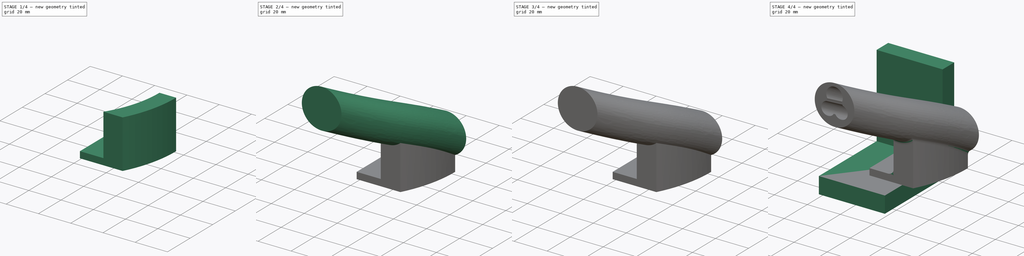
[diagram: build sequence overview — one tinted view per stage of 4, left to right]
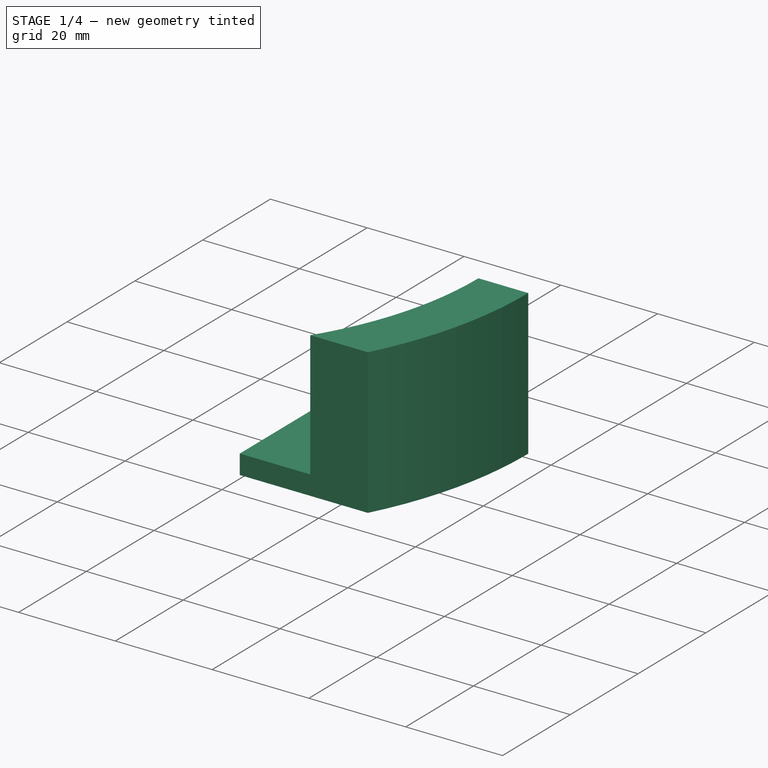
[diagram: stage 1 of 4 — iso view after this stage's code; geometry added in this stage tinted green]
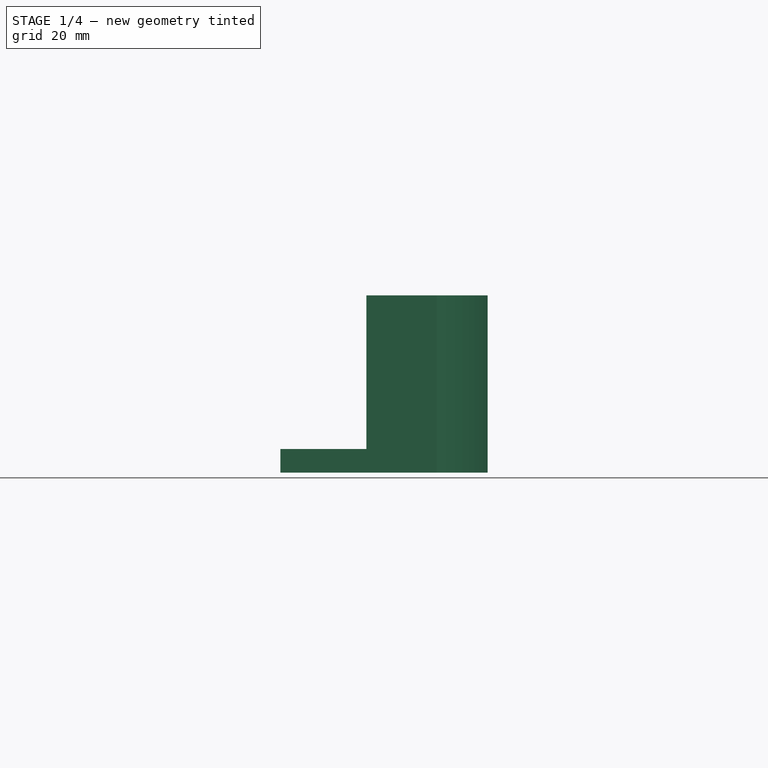
[diagram: stage 1 of 4 — front view after this stage's code; geometry added in this stage tinted green]
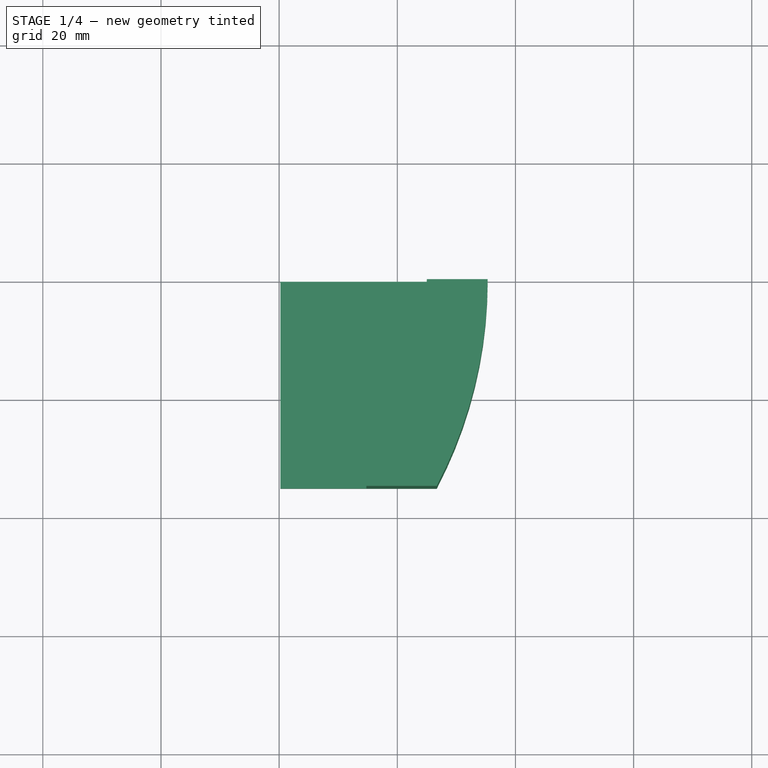
[diagram: stage 1 of 4 — top view after this stage's code; geometry added in this stage tinted green]
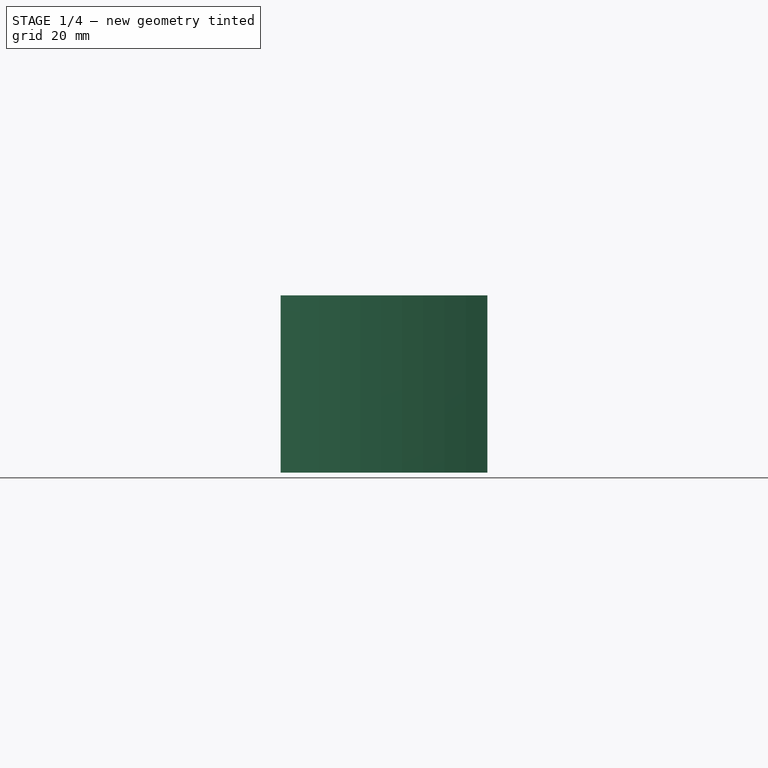
[diagram: stage 1 of 4 — right view after this stage's code; geometry added in this stage tinted green]
FCSTD DOCUMENT  (FreeCAD 1.0R39285 (Git))
Label: threePipeHolder
License: All rights reserved
LicenseURL: http://en.wikipedia.org/wiki/All_rights_reserved
objects: Sketcher::SketchObject×28, Part::Part2DObjectPython×5, PartDesign::AdditivePipe×5, PartDesign::Body×5, Part::Extrusion×3, Part::MultiFuse×3, Part::Cut×1, Part::Fillet×1
note: 89 computed .brp shape members not serialized (recipe doc carries the construction recipe); baked Part::Feature solids carry a one-line shape summary decoded from their .brp

FEATURE [Sketcher::SketchObject] Sketch029
  ArcFitTolerance = 1e-06
  AttachmentOffset = pos=(0,0,20) rot=(0,0,1;0rad)
  AttachmentSupport = -> [XY_Plane004]
  FullyConstrained = true
  MakeInternals = false
  MapMode = 5
  Placement = pos=(0,0,20) rot=(0,0,1;0rad)
  sketch-geometry (1):
    g0: LineSegment StartX=50 StartY=0 StartZ=0 EndX=50 EndY=-10 EndZ=0
  constraints (4):
    c: PointOnObject(g0,g-1)
    c: Vertical(g0)
    c: DistanceX(g0) = 50
    c: DistanceY(g0,g0) = 10
FEATURE [Sketcher::SketchObject] Sketch030
  ArcFitTolerance = 1e-06
  AttachmentOffset = pos=(0,0,50) rot=(0,0,1;0rad)
  AttachmentSupport = -> [XY_Plane004]
  FullyConstrained = true
  MakeInternals = false
  MapMode = 5
  Placement = pos=(0,0,50) rot=(0,0,1;0rad)
  sketch-geometry (1):
    g0: LineSegment StartX=20 StartY=-65 StartZ=0 EndX=20 EndY=-55 EndZ=0
  constraints (4):
    c: Vertical(g0)
    c: DistanceY(g0,g0) = 10
    c: DistanceY(g0) = -65
    c: DistanceX(g0) = 20
FEATURE [Sketcher::SketchObject] Sketch031
  ArcFitTolerance = 1e-06
  AttachmentOffset = pos=(0,0,35) rot=(0,0,1;0rad)
  AttachmentSupport = -> [XY_Plane004]
  FullyConstrained = true
  MakeInternals = false
  MapMode = 5
  Placement = pos=(0,0,35) rot=(0,0,1;0rad)
  sketch-geometry (1):
    g0: LineSegment StartX=40 StartY=-35.6 StartZ=0 EndX=43.2332 EndY=-30 EndZ=0
  constraints (4):
    c: Angle(g0) = 1.0472
    c: DistanceY(g0) = -35.6
    c: DistanceY(g0) = -30
    c: DistanceX(g0) = 40
FEATURE [PartDesign::Body] Body004  label="outer"
  AllowCompound = false
  Group = -> [Sketch027,Sketch028,Sketch029,Sketch030,Sketch031,BezCurve004,AdditivePipe004]
  Origin = -> Origin004
  Tip = -> AdditivePipe004
FEATURE [Sketcher::SketchObject] Sketch032
  ArcFitTolerance = 1e-06
  FullyConstrained = true
  MakeInternals = false
  sketch-geometry (4):
    g0: ArcOfCircle CenterX=-20 CenterY=0 CenterZ=0 NormalX=0 NormalY=0 NormalZ=1 AngleXU=0 Radius=75.3 StartAngle=5.79977 EndAngle=6.28319
    g1: LineSegment StartX=20.2 StartY=0 StartZ=0 EndX=55.3 EndY=-1.84e-14 EndZ=0
    g2: LineSegment StartX=20.2 StartY=0 StartZ=0 EndX=20.2 EndY=-35 EndZ=0
    g3: LineSegment StartX=20.2 StartY=-35 StartZ=0 EndX=46.6715 EndY=-35 EndZ=0
  constraints (13):
    c: PointOnObject(g0,g-1)
    c: PointOnObject(g0,g-1)
    c: DistanceX(g0) = -20
    c: DistanceY(g0) = -35
    c: Radius(g0) = 75.3
    c: PointOnObject(g1,g-1)
    c: Coincident(g1,g0)
    c: DistanceX(g1) = 20.2
    c: Coincident(g2,g1)
    c: Vertical(g2)
    c: Coincident(g3,g2)
    c: Coincident(g3,g0)
    c: Horizontal(g3)
FEATURE [Sketcher::SketchObject] Sketch033
  ArcFitTolerance = 1e-06
  FullyConstrained = true
  MakeInternals = false
  sketch-geometry (4):
    g0: ArcOfCircle CenterX=-20 CenterY=0 CenterZ=0 NormalX=0 NormalY=0 NormalZ=1 AngleXU=0 Radius=75.3 StartAngle=5.79977 EndAngle=6.28319
    g1: ArcOfCircle CenterX=-20 CenterY=0 CenterZ=0 NormalX=0 NormalY=0 NormalZ=1 AngleXU=0 Radius=65 StartAngle=5.71458 EndAngle=6.28319
    g2: LineSegment StartX=34.7723 StartY=-35 StartZ=0 EndX=46.6715 EndY=-35 EndZ=0
    g3: LineSegment StartX=45 StartY=-1.59e-14 StartZ=0 EndX=55.3 EndY=-1.84e-14 EndZ=0
  constraints (13):
    c: PointOnObject(g0,g-1)
    c: PointOnObject(g0,g-1)
    c: DistanceX(g0) = -20
    c: DistanceY(g0) = -35
    c: Radius(g0) = 75.3
    c: Coincident(g1,g0)
    c: PointOnObject(g1,g-1)
    c: Horizontal(g1,g0)
    c: Radius(g1) = 65
    c: Coincident(g2,g1)
    c: Coincident(g2,g0)
    c: Coincident(g3,g1)
    c: Coincident(g3,g0)
FEATURE [Part::Extrusion] Extrude001
  Base = -> Sketch032
  Dir = (0,0,1)
  DirMode = 2
  FaceMakerClass = Part::FaceMakerBullseye
  FaceMakerMode = 3
  LengthFwd = 4
  LengthRev = 0
  Solid = true
  Symmetric = false
FEATURE [Part::Extrusion] Extrude002
  Base = -> Sketch033
  Dir = (0,0,1)
  DirMode = 2
  FaceMakerClass = Part::FaceMakerBullseye
  FaceMakerMode = 3
  LengthFwd = 30
  LengthRev = 0
  Solid = true
  Symmetric = false
FEATURE [Part::MultiFuse] Fusion001
  Shapes = -> [Extrude001,Extrude002]
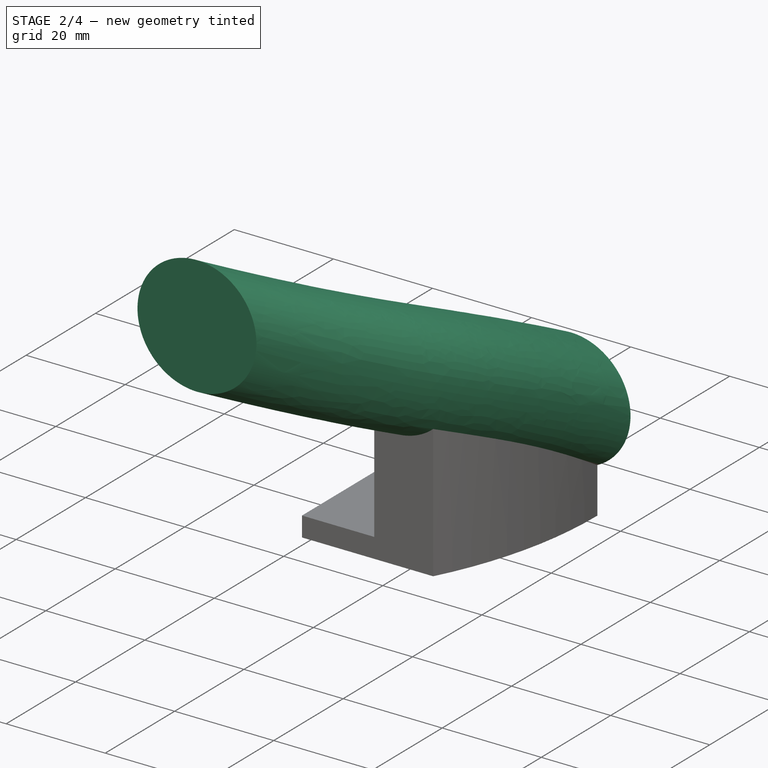
[diagram: stage 2 of 4 — iso view after this stage's code; geometry added in this stage tinted green]
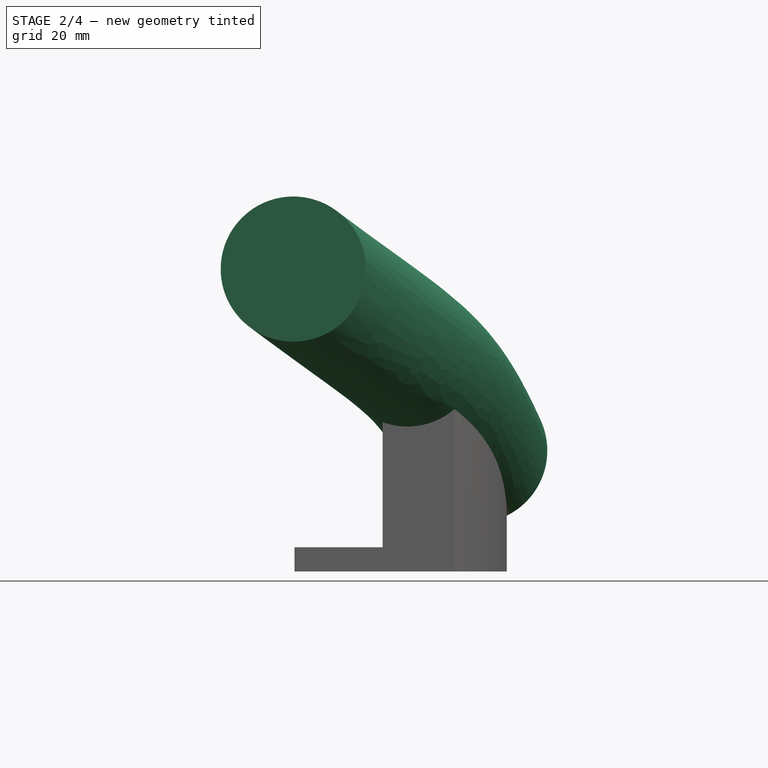
[diagram: stage 2 of 4 — front view after this stage's code; geometry added in this stage tinted green]
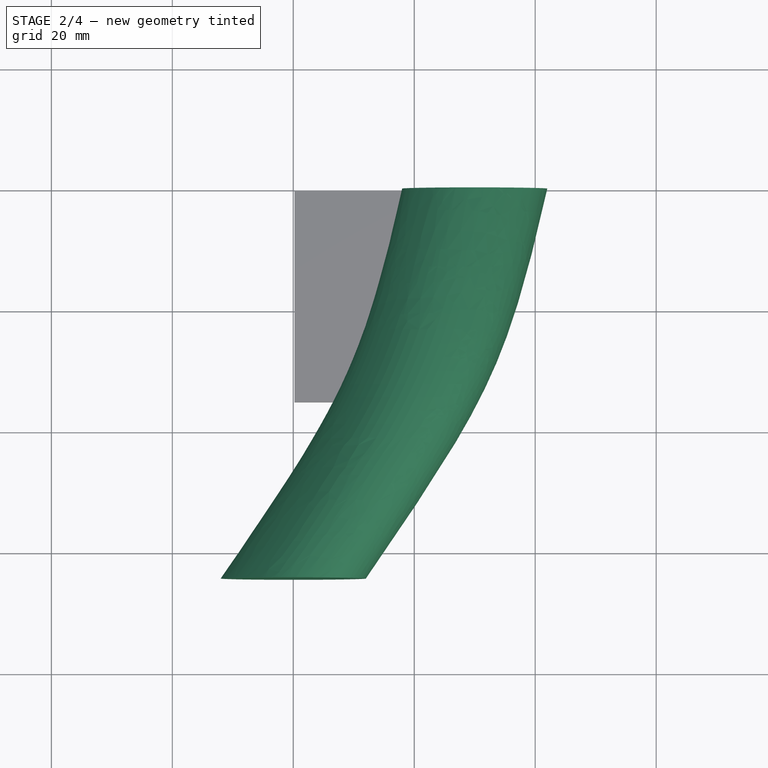
[diagram: stage 2 of 4 — top view after this stage's code; geometry added in this stage tinted green]
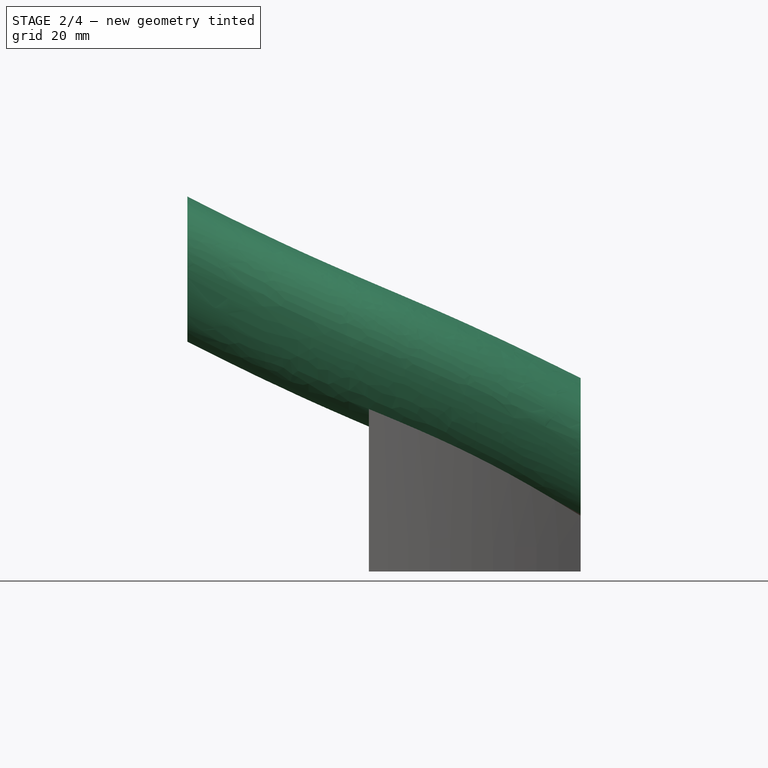
[diagram: stage 2 of 4 — right view after this stage's code; geometry added in this stage tinted green]
FEATURE [Sketcher::SketchObject] Sketch019
  ArcFitTolerance = 1e-06
  AttachmentOffset = pos=(0,0,20) rot=(0,0,1;0rad)
  AttachmentSupport = -> [XY_Plane002]
  FullyConstrained = true
  MakeInternals = false
  MapMode = 5
  Placement = pos=(0,0,20) rot=(0,0,1;0rad)
  sketch-geometry (1):
    g0: LineSegment StartX=50 StartY=0 StartZ=0 EndX=50 EndY=-10 EndZ=0
  constraints (4):
    c: PointOnObject(g0,g-1)
    c: Vertical(g0)
    c: DistanceX(g0) = 50
    c: DistanceY(g0,g0) = 10
FEATURE [Sketcher::SketchObject] Sketch020
  ArcFitTolerance = 1e-06
  AttachmentOffset = pos=(0,0,50) rot=(0,0,1;0rad)
  AttachmentSupport = -> [XY_Plane002]
  FullyConstrained = true
  MakeInternals = false
  MapMode = 5
  Placement = pos=(0,0,50) rot=(0,0,1;0rad)
  sketch-geometry (1):
    g0: LineSegment StartX=20 StartY=-65 StartZ=0 EndX=20 EndY=-55 EndZ=0
  constraints (4):
    c: Vertical(g0)
    c: DistanceY(g0,g0) = 10
    c: DistanceY(g0) = -65
    c: DistanceX(g0) = 20
FEATURE [Sketcher::SketchObject] Sketch021
  ArcFitTolerance = 1e-06
  AttachmentOffset = pos=(0,0,35) rot=(0,0,1;0rad)
  AttachmentSupport = -> [XY_Plane002]
  FullyConstrained = true
  MakeInternals = false
  MapMode = 5
  Placement = pos=(0,0,35) rot=(0,0,1;0rad)
  sketch-geometry (1):
    g0: LineSegment StartX=40 StartY=-35.6 StartZ=0 EndX=43.2332 EndY=-30 EndZ=0
  constraints (4):
    c: Angle(g0) = 1.0472
    c: DistanceY(g0) = -35.6
    c: DistanceY(g0) = -30
    c: DistanceX(g0) = 40
FEATURE [PartDesign::Body] Body002  label="pipe4mm002"
  AllowCompound = false
  Group = -> [Sketch017,Sketch018,Sketch019,Sketch020,Sketch021,BezCurve002,AdditivePipe002]
  Origin = -> Origin002
  Placement = pos=(4,0,-3) rot=(0,0,1;0rad)
  Tip = -> AdditivePipe002
FEATURE [Part::Part2DObjectPython] BezCurve003  # Draft 2D object (typed FeaturePython)
  Area = 0
  Closed = false
  Degree = 3
  Length = 78.2967
  MakeFace = true
  Points = (4) [(50,0,20),(43.2332,-30,35),(40,-35.6,35),(20,-65,50)]
FEATURE [Sketcher::SketchObject] Sketch022
  ArcFitTolerance = 1e-06
  AttachmentOffset = pos=(0,15,0) rot=(0,0,1;0rad)
  FullyConstrained = true
  MakeInternals = false
  MapMode = 5
  Placement = pos=(0,-65,0) rot=(1,0,0;1.5708rad)
  sketch-geometry (1):
    g0: Circle CenterX=20 CenterY=50 CenterZ=0 NormalX=0 NormalY=0 NormalZ=1 AngleXU=0 Radius=4
  constraints (3):
    c: Radius(g0) = 4
    c: DistanceX(g0) = 20
    c: DistanceY(g0) = 50
FEATURE [Sketcher::SketchObject] Sketch023
  ArcFitTolerance = 1e-06
  FullyConstrained = true
  MakeInternals = false
  MapMode = 5
  Placement = pos=(0,0,0) rot=(1,0,0;1.5708rad)
  sketch-geometry (1):
    g0: Circle CenterX=50 CenterY=20 CenterZ=0 NormalX=0 NormalY=0 NormalZ=1 AngleXU=0 Radius=4
  constraints (3):
    c: Radius(g0) = 4
    c: DistanceX(g0) = 50
    c: DistanceY(g0) = 20
FEATURE [PartDesign::AdditivePipe] AdditivePipe003
  AuxilleryCurvelinear = true
  AuxillerySpineTangent = false
  Binormal = (0,0,0)
  Mode = 1
  Placement = pos=(0,0,0) rot=(1,0,0;1.5708rad)
  Profile = -> Sketch023
  Sections = -> [Sketch022]
  Spine = -> BezCurve003
  SpineTangent = false
  Suppressed = false
  Transformation = 1
  Transition = 0
FEATURE [Part::Part2DObjectPython] BezCurve004  # Draft 2D object (typed FeaturePython)
  Area = 0
  Closed = false
  Degree = 3
  Length = 78.2967
  MakeFace = true
  Points = (4) [(50,0,20),(43.2332,-30,35),(40,-35.6,35),(20,-65,50)]
FEATURE [Sketcher::SketchObject] Sketch027
  ArcFitTolerance = 1e-06
  AttachmentOffset = pos=(0,15,0) rot=(0,0,1;0rad)
  FullyConstrained = true
  MakeInternals = false
  MapMode = 5
  Placement = pos=(0,-65,0) rot=(1,0,0;1.5708rad)
  sketch-geometry (1):
    g0: Circle CenterX=20 CenterY=50 CenterZ=0 NormalX=0 NormalY=0 NormalZ=1 AngleXU=0 Radius=12
  constraints (3):
    c: Radius(g0) = 12
    c: DistanceX(g0) = 20
    c: DistanceY(g0) = 50
FEATURE [Sketcher::SketchObject] Sketch028
  ArcFitTolerance = 1e-06
  FullyConstrained = true
  MakeInternals = false
  MapMode = 5
  Placement = pos=(0,0,0) rot=(1,0,0;1.5708rad)
  sketch-geometry (1):
    g0: Circle CenterX=50 CenterY=20 CenterZ=0 NormalX=0 NormalY=0 NormalZ=1 AngleXU=0 Radius=12
  constraints (3):
    c: Radius(g0) = 12
    c: DistanceX(g0) = 50
    c: DistanceY(g0) = 20
FEATURE [PartDesign::AdditivePipe] AdditivePipe004
  AuxilleryCurvelinear = true
  AuxillerySpineTangent = false
  Binormal = (0,0,0)
  Mode = 1
  Placement = pos=(0,0,0) rot=(1,0,0;1.5708rad)
  Profile = -> Sketch028
  Sections = -> [Sketch027]
  Spine = -> BezCurve004
  SpineTangent = false
  Suppressed = false
  Transformation = 1
  Transition = 0
FEATURE [Part::MultiFuse] Fusion002  label="outter"
  Shapes = -> [Fusion001,Body004]
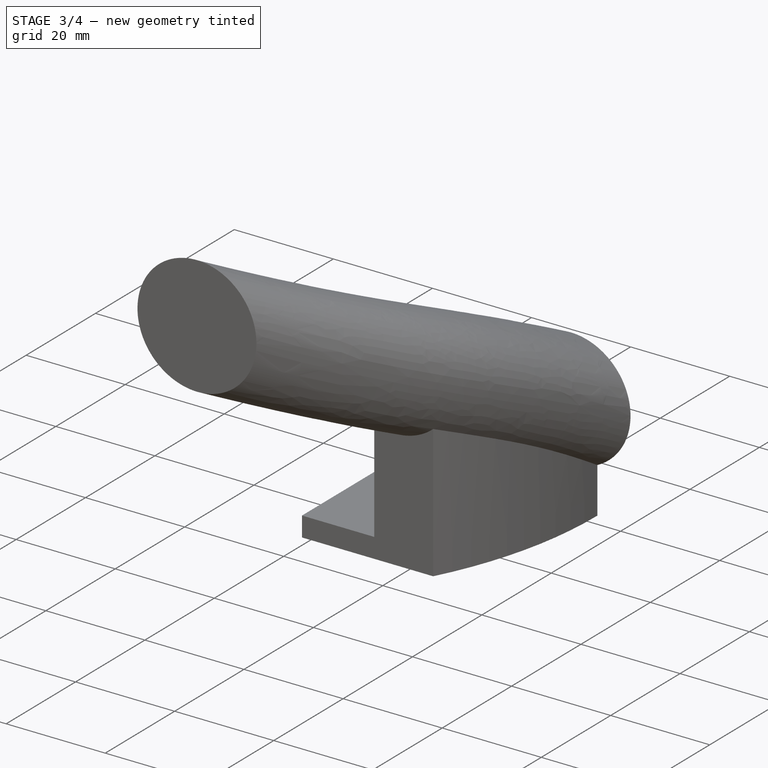
[diagram: stage 3 of 4 — iso view after this stage's code; geometry added in this stage tinted green]
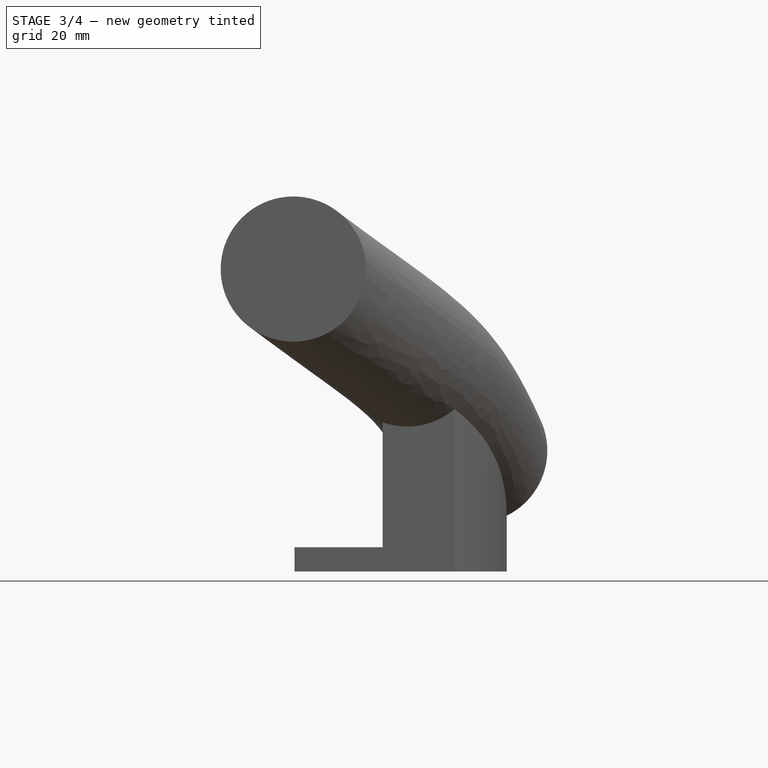
[diagram: stage 3 of 4 — front view after this stage's code; geometry added in this stage tinted green]
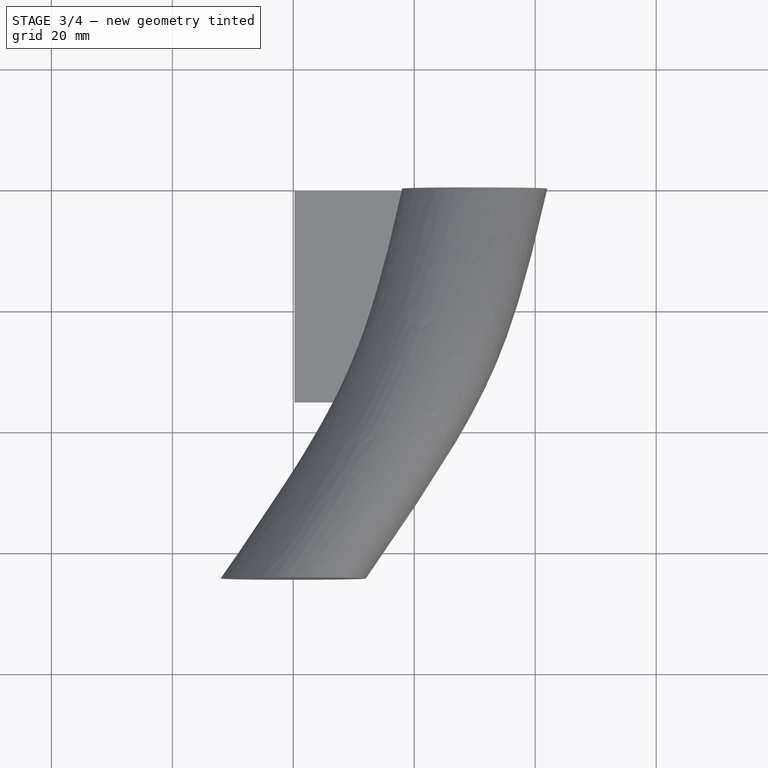
[diagram: stage 3 of 4 — top view after this stage's code; geometry added in this stage tinted green]
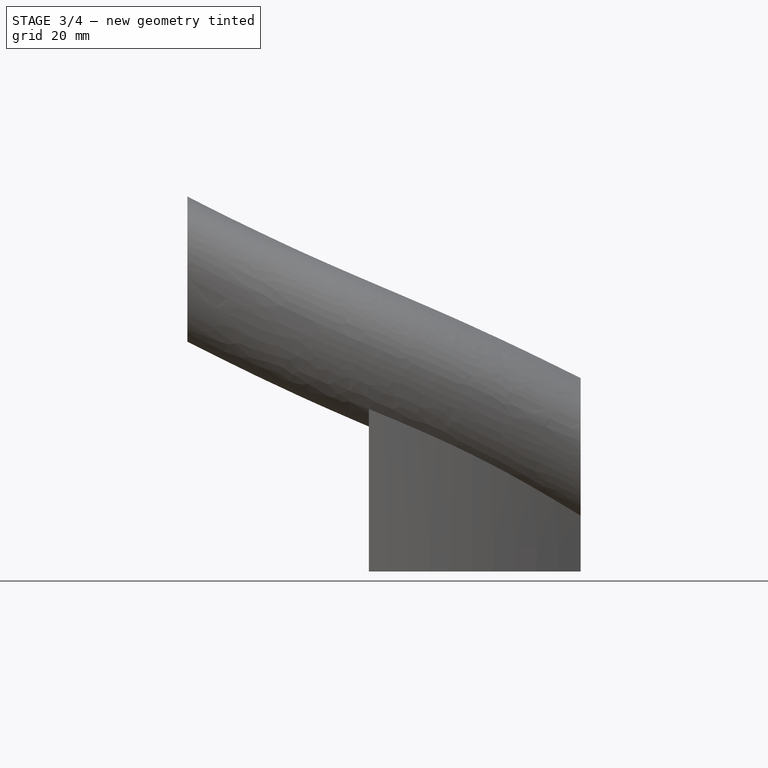
[diagram: stage 3 of 4 — right view after this stage's code; geometry added in this stage tinted green]
FEATURE [Sketcher::SketchObject] Sketch009
  ArcFitTolerance = 1e-06
  AttachmentOffset = pos=(0,0,20) rot=(0,0,1;0rad)
  AttachmentSupport = -> [XY_Plane]
  FullyConstrained = true
  MakeInternals = false
  MapMode = 5
  Placement = pos=(0,0,20) rot=(0,0,1;0rad)
  sketch-geometry (1):
    g0: LineSegment StartX=50 StartY=0 StartZ=0 EndX=50 EndY=-10 EndZ=0
  constraints (4):
    c: PointOnObject(g0,g-1)
    c: Vertical(g0)
    c: DistanceX(g0) = 50
    c: DistanceY(g0,g0) = 10
FEATURE [Sketcher::SketchObject] Sketch010
  ArcFitTolerance = 1e-06
  AttachmentOffset = pos=(0,0,50) rot=(0,0,1;0rad)
  AttachmentSupport = -> [XY_Plane]
  FullyConstrained = true
  MakeInternals = false
  MapMode = 5
  Placement = pos=(0,0,50) rot=(0,0,1;0rad)
  sketch-geometry (1):
    g0: LineSegment StartX=20 StartY=-65 StartZ=0 EndX=20 EndY=-55 EndZ=0
  constraints (4):
    c: Vertical(g0)
    c: DistanceY(g0,g0) = 10
    c: DistanceY(g0) = -65
    c: DistanceX(g0) = 20
FEATURE [Sketcher::SketchObject] Sketch011
  ArcFitTolerance = 1e-06
  AttachmentOffset = pos=(0,0,35) rot=(0,0,1;0rad)
  AttachmentSupport = -> [XY_Plane]
  FullyConstrained = true
  MakeInternals = false
  MapMode = 5
  Placement = pos=(0,0,35) rot=(0,0,1;0rad)
  sketch-geometry (1):
    g0: LineSegment StartX=40 StartY=-35.6 StartZ=0 EndX=43.2332 EndY=-30 EndZ=0
  constraints (4):
    c: Angle(g0) = 1.0472
    c: DistanceY(g0) = -35.6
    c: DistanceY(g0) = -30
    c: DistanceX(g0) = 40
FEATURE [Sketcher::SketchObject] Sketch007
  ArcFitTolerance = 1e-06
  AttachmentOffset = pos=(0,15,0) rot=(0,0,1;0rad)
  FullyConstrained = true
  MakeInternals = false
  MapMode = 5
  Placement = pos=(0,-65,0) rot=(1,0,0;1.5708rad)
  sketch-geometry (1):
    g0: Circle CenterX=20 CenterY=50 CenterZ=0 NormalX=0 NormalY=0 NormalZ=1 AngleXU=0 Radius=5
  constraints (3):
    c: Radius(g0) = 5
    c: DistanceX(g0) = 20
    c: DistanceY(g0) = 50
FEATURE [Sketcher::SketchObject] Sketch008
  ArcFitTolerance = 1e-06
  FullyConstrained = true
  MakeInternals = false
  MapMode = 5
  Placement = pos=(0,0,0) rot=(1,0,0;1.5708rad)
  sketch-geometry (1):
    g0: Circle CenterX=50 CenterY=20 CenterZ=0 NormalX=0 NormalY=0 NormalZ=1 AngleXU=0 Radius=5
  constraints (3):
    c: Radius(g0) = 5
    c: DistanceX(g0) = 50
    c: DistanceY(g0) = 20
FEATURE [Part::Part2DObjectPython] BezCurve  # Draft 2D object (typed FeaturePython)
  Area = 0
  Closed = false
  Degree = 3
  Length = 78.2967
  MakeFace = true
  Points = (4) [(50,0,20),(43.2332,-30,35),(40,-35.6,35),(20,-65,50)]
FEATURE [PartDesign::AdditivePipe] AdditivePipe
  AuxilleryCurvelinear = true
  AuxillerySpineTangent = false
  Binormal = (0,0,0)
  Mode = 1
  Placement = pos=(0,0,0) rot=(1,0,0;1.5708rad)
  Profile = -> Sketch008
  Sections = -> [Sketch007]
  Spine = -> BezCurve
  SpineTangent = false
  Suppressed = false
  Transformation = 1
  Transition = 0
FEATURE [PartDesign::Body] Body  label="original5mm"
  AllowCompound = false
  Group = -> [Sketch007,Sketch008,Sketch009,Sketch010,Sketch011,BezCurve,AdditivePipe]
  Origin = -> Origin
  Tip = -> AdditivePipe
FEATURE [Part::Part2DObjectPython] BezCurve001  # Draft 2D object (typed FeaturePython)
  Area = 0
  Closed = false
  Degree = 3
  Length = 78.2967
  MakeFace = true
  Points = (4) [(50,0,20),(43.2332,-30,35),(40,-35.6,35),(20,-65,50)]
FEATURE [Sketcher::SketchObject] Sketch012
  ArcFitTolerance = 1e-06
  AttachmentOffset = pos=(0,15,0) rot=(0,0,1;0rad)
  FullyConstrained = true
  MakeInternals = false
  MapMode = 5
  Placement = pos=(0,-65,0) rot=(1,0,0;1.5708rad)
  sketch-geometry (1):
    g0: Circle CenterX=20 CenterY=50 CenterZ=0 NormalX=0 NormalY=0 NormalZ=1 AngleXU=0 Radius=5
  constraints (3):
    c: Radius(g0) = 5
    c: DistanceX(g0) = 20
    c: DistanceY(g0) = 50
FEATURE [Sketcher::SketchObject] Sketch013
  ArcFitTolerance = 1e-06
  FullyConstrained = true
  MakeInternals = false
  MapMode = 5
  Placement = pos=(0,0,0) rot=(1,0,0;1.5708rad)
  sketch-geometry (1):
    g0: Circle CenterX=50 CenterY=20 CenterZ=0 NormalX=0 NormalY=0 NormalZ=1 AngleXU=0 Radius=5
  constraints (3):
    c: Radius(g0) = 5
    c: DistanceX(g0) = 50
    c: DistanceY(g0) = 20
FEATURE [PartDesign::AdditivePipe] AdditivePipe001
  AuxilleryCurvelinear = true
  AuxillerySpineTangent = false
  Binormal = (0,0,0)
  Mode = 1
  Placement = pos=(0,0,0) rot=(1,0,0;1.5708rad)
  Profile = -> Sketch013
  Sections = -> [Sketch012]
  Spine = -> BezCurve001
  SpineTangent = false
  Suppressed = false
  Transformation = 1
  Transition = 0
FEATURE [Sketcher::SketchObject] Sketch014
  ArcFitTolerance = 1e-06
  AttachmentOffset = pos=(0,0,20) rot=(0,0,1;0rad)
  AttachmentSupport = -> [XY_Plane001]
  FullyConstrained = true
  MakeInternals = false
  MapMode = 5
  Placement = pos=(0,0,20) rot=(0,0,1;0rad)
  sketch-geometry (1):
    g0: LineSegment StartX=50 StartY=0 StartZ=0 EndX=50 EndY=-10 EndZ=0
  constraints (4):
    c: PointOnObject(g0,g-1)
    c: Vertical(g0)
    c: DistanceX(g0) = 50
    c: DistanceY(g0,g0) = 10
FEATURE [Sketcher::SketchObject] Sketch015
  ArcFitTolerance = 1e-06
  AttachmentOffset = pos=(0,0,50) rot=(0,0,1;0rad)
  AttachmentSupport = -> [XY_Plane001]
  FullyConstrained = true
  MakeInternals = false
  MapMode = 5
  Placement = pos=(0,0,50) rot=(0,0,1;0rad)
  sketch-geometry (1):
    g0: LineSegment StartX=20 StartY=-65 StartZ=0 EndX=20 EndY=-55 EndZ=0
  constraints (4):
    c: Vertical(g0)
    c: DistanceY(g0,g0) = 10
    c: DistanceY(g0) = -65
    c: DistanceX(g0) = 20
FEATURE [Sketcher::SketchObject] Sketch016
  ArcFitTolerance = 1e-06
  AttachmentOffset = pos=(0,0,35) rot=(0,0,1;0rad)
  AttachmentSupport = -> [XY_Plane001]
  FullyConstrained = true
  MakeInternals = false
  MapMode = 5
  Placement = pos=(0,0,35) rot=(0,0,1;0rad)
  sketch-geometry (1):
    g0: LineSegment StartX=40 StartY=-35.6 StartZ=0 EndX=43.2332 EndY=-30 EndZ=0
  constraints (4):
    c: Angle(g0) = 1.0472
    c: DistanceY(g0) = -35.6
    c: DistanceY(g0) = -30
    c: DistanceX(g0) = 40
FEATURE [PartDesign::Body] Body001  label="pipe5mm001"
  AllowCompound = false
  Group = -> [Sketch012,Sketch013,Sketch014,Sketch015,Sketch016,BezCurve001,AdditivePipe001]
  Origin = -> Origin001
  Placement = pos=(0,0,5) rot=(0,0,1;0rad)
  Tip = -> AdditivePipe001
FEATURE [Part::Part2DObjectPython] BezCurve002  # Draft 2D object (typed FeaturePython)
  Area = 0
  Closed = false
  Degree = 3
  Length = 78.2967
  MakeFace = true
  Points = (4) [(50,0,20),(43.2332,-30,35),(40,-35.6,35),(20,-65,50)]
FEATURE [Sketcher::SketchObject] Sketch017
  ArcFitTolerance = 1e-06
  AttachmentOffset = pos=(0,15,0) rot=(0,0,1;0rad)
  FullyConstrained = true
  MakeInternals = false
  MapMode = 5
  Placement = pos=(0,-65,0) rot=(1,0,0;1.5708rad)
  sketch-geometry (1):
    g0: Circle CenterX=20 CenterY=50 CenterZ=0 NormalX=0 NormalY=0 NormalZ=1 AngleXU=0 Radius=4
  constraints (3):
    c: Radius(g0) = 4
    c: DistanceX(g0) = 20
    c: DistanceY(g0) = 50
FEATURE [Sketcher::SketchObject] Sketch018
  ArcFitTolerance = 1e-06
  FullyConstrained = true
  MakeInternals = false
  MapMode = 5
  Placement = pos=(0,0,0) rot=(1,0,0;1.5708rad)
  sketch-geometry (1):
    g0: Circle CenterX=50 CenterY=20 CenterZ=0 NormalX=0 NormalY=0 NormalZ=1 AngleXU=0 Radius=4
  constraints (3):
    c: Radius(g0) = 4
    c: DistanceX(g0) = 50
    c: DistanceY(g0) = 20
FEATURE [PartDesign::AdditivePipe] AdditivePipe002
  AuxilleryCurvelinear = true
  AuxillerySpineTangent = false
  Binormal = (0,0,0)
  Mode = 1
  Placement = pos=(0,0,0) rot=(1,0,0;1.5708rad)
  Profile = -> Sketch018
  Sections = -> [Sketch017]
  Spine = -> BezCurve002
  SpineTangent = false
  Suppressed = false
  Transformation = 1
  Transition = 0
FEATURE [Sketcher::SketchObject] Sketch024
  ArcFitTolerance = 1e-06
  AttachmentOffset = pos=(0,0,20) rot=(0,0,1;0rad)
  AttachmentSupport = -> [XY_Plane003]
  FullyConstrained = true
  MakeInternals = false
  MapMode = 5
  Placement = pos=(0,0,20) rot=(0,0,1;0rad)
  sketch-geometry (1):
    g0: LineSegment StartX=50 StartY=0 StartZ=0 EndX=50 EndY=-10 EndZ=0
  constraints (4):
    c: PointOnObject(g0,g-1)
    c: Vertical(g0)
    c: DistanceX(g0) = 50
    c: DistanceY(g0,g0) = 10
FEATURE [Sketcher::SketchObject] Sketch025
  ArcFitTolerance = 1e-06
  AttachmentOffset = pos=(0,0,50) rot=(0,0,1;0rad)
  AttachmentSupport = -> [XY_Plane003]
  FullyConstrained = true
  MakeInternals = false
  MapMode = 5
  Placement = pos=(0,0,50) rot=(0,0,1;0rad)
  sketch-geometry (1):
    g0: LineSegment StartX=20 StartY=-65 StartZ=0 EndX=20 EndY=-55 EndZ=0
  constraints (4):
    c: Vertical(g0)
    c: DistanceY(g0,g0) = 10
    c: DistanceY(g0) = -65
    c: DistanceX(g0) = 20
FEATURE [Sketcher::SketchObject] Sketch026
  ArcFitTolerance = 1e-06
  AttachmentOffset = pos=(0,0,35) rot=(0,0,1;0rad)
  AttachmentSupport = -> [XY_Plane003]
  FullyConstrained = true
  MakeInternals = false
  MapMode = 5
  Placement = pos=(0,0,35) rot=(0,0,1;0rad)
  sketch-geometry (1):
    g0: LineSegment StartX=40 StartY=-35.6 StartZ=0 EndX=43.2332 EndY=-30 EndZ=0
  constraints (4):
    c: Angle(g0) = 1.0472
    c: DistanceY(g0) = -35.6
    c: DistanceY(g0) = -30
    c: DistanceX(g0) = 40
FEATURE [PartDesign::Body] Body003  label="pipe4mm003"
  AllowCompound = false
  Group = -> [Sketch022,Sketch023,Sketch024,Sketch025,Sketch026,BezCurve003,AdditivePipe003]
  Origin = -> Origin003
  Placement = pos=(-4,0,-3) rot=(0,0,1;0rad)
  Tip = -> AdditivePipe003
FEATURE [Part::MultiFuse] Fusion  label="inner"
  Shapes = -> [Body003,Body002,Body,Body001]
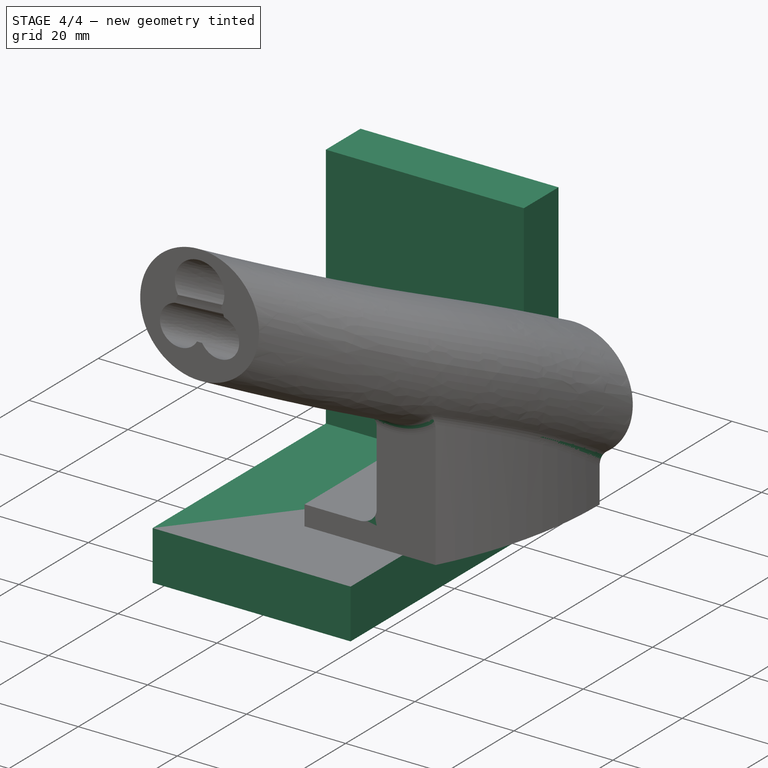
[diagram: stage 4 of 4 — iso view after this stage's code; geometry added in this stage tinted green]
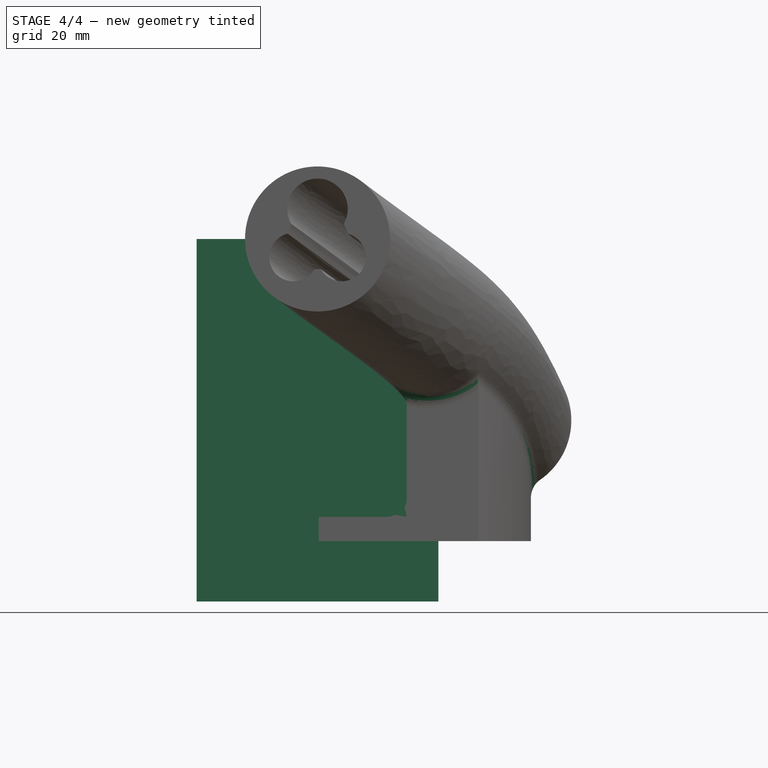
[diagram: stage 4 of 4 — front view after this stage's code; geometry added in this stage tinted green]
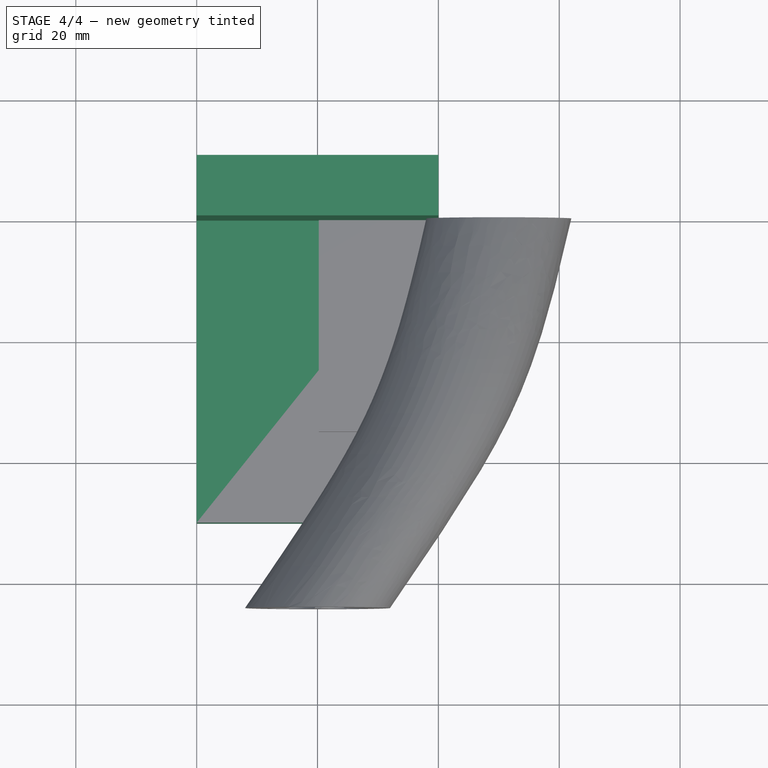
[diagram: stage 4 of 4 — top view after this stage's code; geometry added in this stage tinted green]
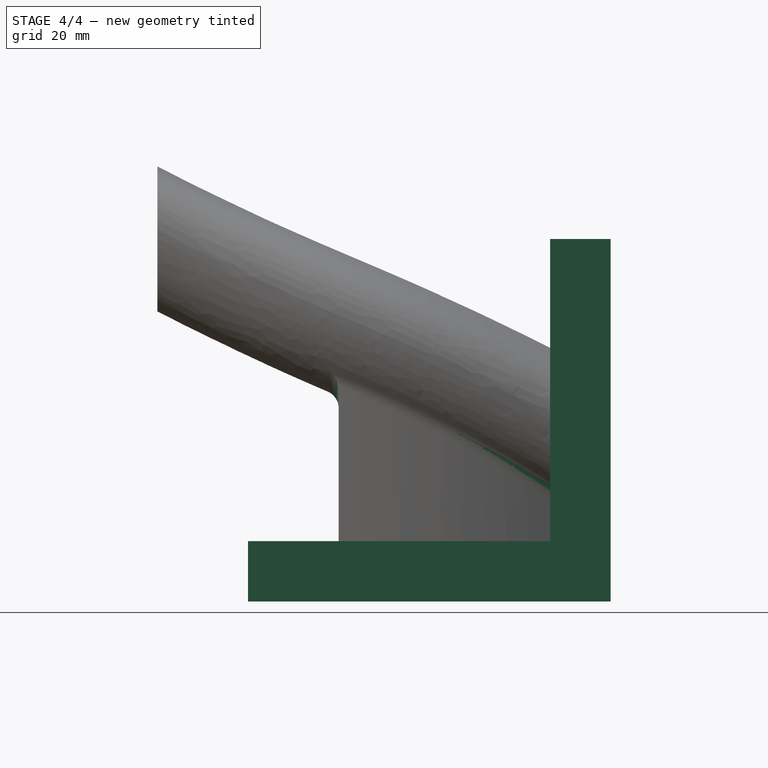
[diagram: stage 4 of 4 — right view after this stage's code; geometry added in this stage tinted green]
FEATURE [Sketcher::SketchObject] Sketch
  ArcFitTolerance = 1e-06
  FullyConstrained = true
  MakeInternals = false
  Placement = pos=(0,0,0) rot=(0.57735,0.57735,0.57735;2.0944rad)
  sketch-geometry (6):
    g0: LineSegment StartX=0 StartY=0 StartZ=0 EndX=-50 EndY=0 EndZ=0
    g1: LineSegment StartX=-50 StartY=0 StartZ=0 EndX=-50 EndY=-10 EndZ=0
    g2: LineSegment StartX=-50 StartY=-10 StartZ=0 EndX=10 EndY=-10 EndZ=0
    g3: LineSegment StartX=10 StartY=-10 StartZ=0 EndX=10 EndY=50 EndZ=0
    g4: LineSegment StartX=10 StartY=50 StartZ=0 EndX=0 EndY=50 EndZ=0
    g5: LineSegment StartX=0 StartY=50 StartZ=0 EndX=0 EndY=0 EndZ=0
  constraints (17):
    c: Coincident(g0,g-1)
    c: PointOnObject(g0,g-1)
    c: Horizontal(g2)
    c: Coincident(g3,g2)
    c: Vertical(g3)
    c: Coincident(g4,g3)
    c: PointOnObject(g4,g-2)
    c: Coincident(g5,g4)
    c: Coincident(g5,g0)
    c: Horizontal(g4)
    c: Vertical(g1)
    c: Coincident(g0,g1)
    c: Coincident(g2,g1)
    c: DistanceY(g1,g1) = 10
    c: DistanceX(g4,g4) = 10
    c: DistanceY(g5,g5) = 50
    c: DistanceX(g0,g0) = 50
FEATURE [Part::Extrusion] Extrude
  Base = -> Sketch
  Dir = (1,0,0)
  DirMode = 2
  FaceMakerClass = Part::FaceMakerBullseye
  FaceMakerMode = 3
  LengthFwd = 40
  LengthRev = 0
  Solid = true
  Symmetric = false
FEATURE [Part::Cut] Cut
  Base = -> Fusion002
  Tool = -> Fusion
FEATURE [Part::Fillet] Fillet
  Base = -> Cut
  EdgeLinks = -> Cut [Edge33,Edge34,Edge35,Edge53]
  Edges = 4 edges r=3: [Edge33,Edge34,Edge35,Edge53]
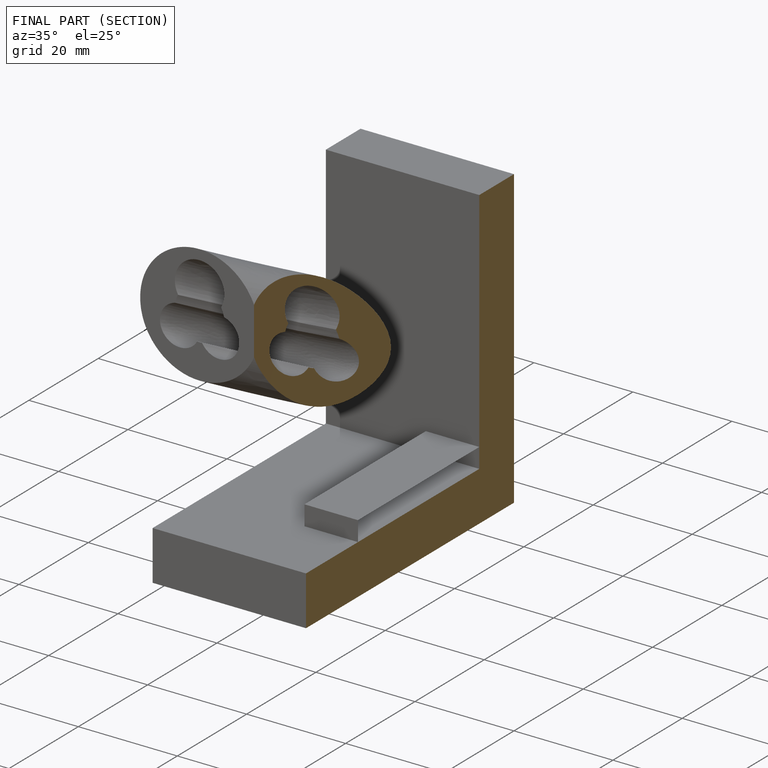
[diagram: finished part — half-section view (interior)]
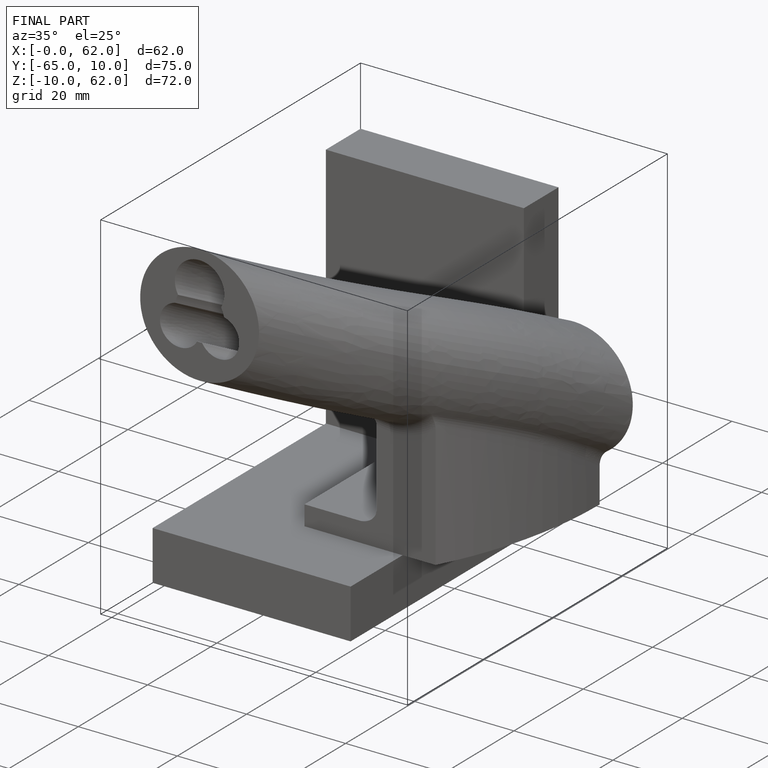
[diagram: finished part — iso view with bounding-box wireframe]
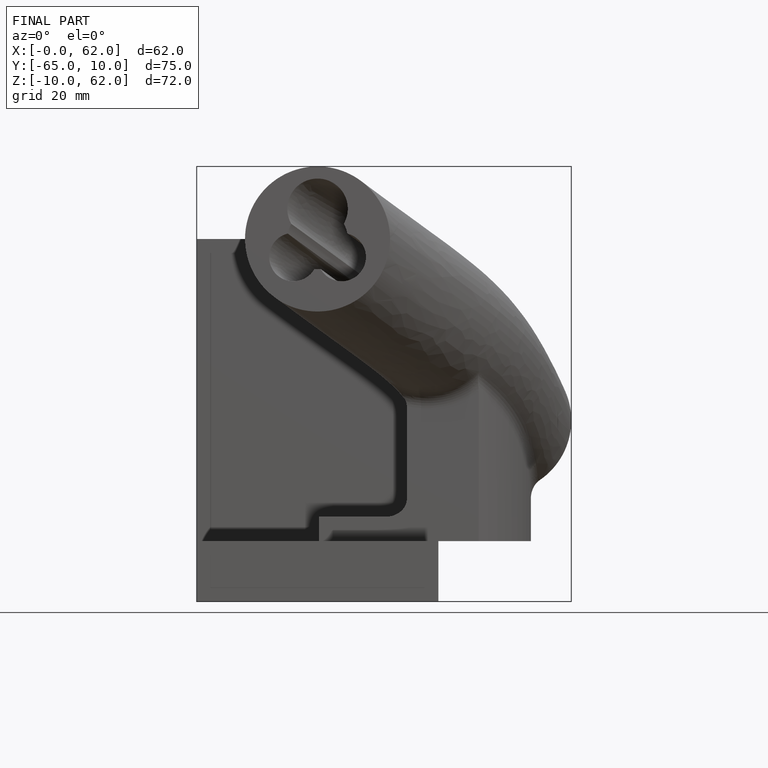
[diagram: finished part — front view with bounding-box wireframe]
